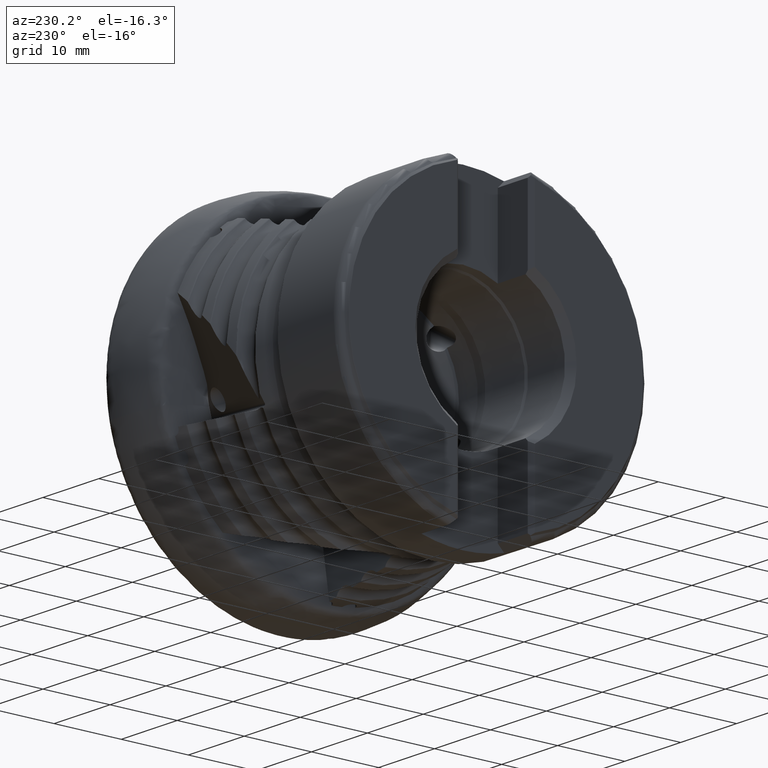
[diagram: clean part render]
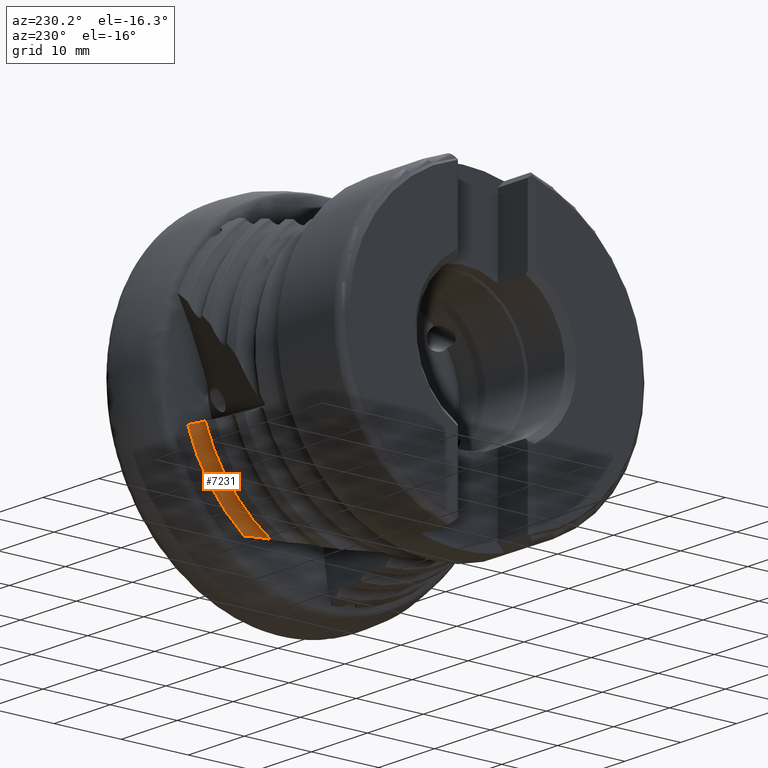
[diagram: same view with one face highlighted and labeled with its STEP entity id]
A machine part, auxiliary view. The second image highlights one B-rep face of the part: STEP entity #7231.
In plain terms, the highlighted toroidal blend (fillet) surface has major radius 23.955 mm and minor (blend) radius 1.5 mm.
Its self-contained STEP definition (entity closure, byte-faithful):
#120 = CARTESIAN_POINT ( 'NONE',  ( -12.39733285107306100, 11.71879220787598200, -19.19430444232506300 ) ) ;
#266 = CARTESIAN_POINT ( 'NONE',  ( -12.55580385029482900, 21.42346964659504100, -6.998692743784970600 ) ) ;
#885 = CARTESIAN_POINT ( 'NONE',  ( -10.83496305367967900, 13.31198459178215500, -18.82122147978789400 ) ) ;
#907 = CARTESIAN_POINT ( 'NONE',  ( -12.83288638579834800, 11.75946830251291400, -19.37665331344237200 ) ) ;
#1054 = CARTESIAN_POINT ( 'NONE',  ( -12.19852963367064700, 21.35488572603442500, -6.950139747027097100 ) ) ;
#1070 = EDGE_CURVE ( 'NONE', #2704, #5597, #2824, .T. ) ;
#1638 = EDGE_CURVE ( 'NONE', #8301, #2704, #7625, .T. ) ;
#1677 = CARTESIAN_POINT ( 'NONE',  ( -10.64922864038300800, 13.90660544288887800, -18.84234868751763200 ) ) ;
#1705 = CARTESIAN_POINT ( 'NONE',  ( -13.07315635611657400, 11.92584612400722800, -19.50050367586986900 ) ) ;
#1854 = CARTESIAN_POINT ( 'NONE',  ( -11.83321212871193700, 21.37069172257798800, -6.928415310497913800 ) ) ;
#2298 = ORIENTED_EDGE ( 'NONE', *, *, #1070, .T. ) ;
#2477 = CARTESIAN_POINT ( 'NONE',  ( -11.13041719893031000, 12.76257767887297100, -18.85167985422474100 ) ) ;
#2648 = CARTESIAN_POINT ( 'NONE',  ( -11.47859461521570700, 21.47065304658107700, -6.934821318568586100 ) ) ;
#2704 = VERTEX_POINT ( 'NONE', #5037 ) ;
#2789 = DIRECTION ( 'NONE',  ( 0.0000000000000000000, 0.0000000000000000000, -1.000000000000000000 ) ) ;
#2824 = B_SPLINE_CURVE_WITH_KNOTS ( 'NONE', 3,
 ( #1677, #6355, #885, #7141, #2477, #7916, #3259, #8721, #4037, #9528, #4832, #120, #5611, #907, #6393, #1705 ),
 .UNSPECIFIED., .F., .F.,
 ( 4, 2, 2, 2, 2, 2, 2, 4 ),
 ( 8.253477086968365500E-007, 0.0009308591653724857000, 0.001395876074204377600, 0.001860892983036269400, 0.002325909891868161100, 0.002790926800700053600, 0.003255943709531945200, 0.003720960618363837300 ),
 .UNSPECIFIED. ) ;
#3104 = ORIENTED_EDGE ( 'NONE', *, *, #7568, .T. ) ;
#3259 = CARTESIAN_POINT ( 'NONE',  ( -11.40311828469842600, 12.38530799839650800, -18.90077119948897500 ) ) ;
#3392 = CARTESIAN_POINT ( 'NONE',  ( -13.07315635611658400, 21.71700909958214600, -7.132108044244627200 ) ) ;
#3424 = CARTESIAN_POINT ( 'NONE',  ( -11.15837931970024000, 21.64857431446633700, -6.969087484803682600 ) ) ;
#3428 = AXIS2_PLACEMENT_3D ( 'NONE', #7436, #7408, #2789 ) ;
#3805 = CARTESIAN_POINT ( 'NONE',  ( -13.07315635611657400, 11.92584612400722800, -19.50050367586986900 ) ) ;
#3964 = CIRCLE ( 'NONE', #8117, 22.85815936128961200 ) ;
#3987 = CARTESIAN_POINT ( 'NONE',  ( -13.07315635611660200, 0.0000000000000000000, 0.0000000000000000000 ) ) ;
#4037 = CARTESIAN_POINT ( 'NONE',  ( -11.72989152014818400, 12.05547185456704500, -18.97934912721723700 ) ) ;
#4223 = CARTESIAN_POINT ( 'NONE',  ( -10.73758827631938600, 22.08095651042593100, -7.078638146277021400 ) ) ;
#4405 = DIRECTION ( 'NONE',  ( -1.000000000000000000, 0.0000000000000000000, 0.0000000000000000000 ) ) ;
#4766 = DIRECTION ( 'NONE',  ( 0.0000000000000000000, 0.0000000000000000000, -1.000000000000000000 ) ) ;
#4832 = CARTESIAN_POINT ( 'NONE',  ( -12.11420666375667400, 11.80673023346263400, -19.09425315640027100 ) ) ;
#4977 = CARTESIAN_POINT ( 'NONE',  ( -12.67112704960195800, 21.46526317138879500, -7.020751467664488200 ) ) ;
#5037 = CARTESIAN_POINT ( 'NONE',  ( -10.64922864038300800, 13.90660544288887800, -18.84234868751763200 ) ) ;
#5400 = FACE_OUTER_BOUND ( 'NONE', #6435, .T. ) ;
#5571 = CARTESIAN_POINT ( 'NONE',  ( -10.64922864038293900, 22.30225117972865700, -7.144044465320945400 ) ) ;
#5597 = VERTEX_POINT ( 'NONE', #3805 ) ;
#5611 = CARTESIAN_POINT ( 'NONE',  ( -12.54696003583467100, 11.70431974509783400, -19.25235081107150500 ) ) ;
#5747 = CARTESIAN_POINT ( 'NONE',  ( -12.32100576554029900, 21.36869864686698200, -6.963632943803692600 ) ) ;
#6047 = B_SPLINE_CURVE_WITH_KNOTS ( 'NONE', 3,
 ( #3392, #6501, #9671, #4977, #266, #5747, #1054, #6542, #1854, #7307, #2648, #8108, #3424, #8908, #4223, #9716 ),
 .UNSPECIFIED., .F., .F.,
 ( 4, 2, 2, 2, 2, 2, 2, 4 ),
 ( 2.699627758606063600E-007, 0.0003656528789479819400, 0.0007310357951201032200, 0.001096418711292224600, 0.001461801627464345900, 0.001827184543636467100, 0.002192567459808588600, 0.002923333292152831200 ),
 .UNSPECIFIED. ) ;
#6355 = CARTESIAN_POINT ( 'NONE',  ( -10.72438406242118900, 13.60180446419940000, -18.82342676156950000 ) ) ;
#6393 = CARTESIAN_POINT ( 'NONE',  ( -12.96352739467743300, 11.82803265218505100, -19.44045524242923800 ) ) ;
#6435 = EDGE_LOOP ( 'NONE', ( #3104, #6508, #7862, #2298 ) ) ;
#6501 = CARTESIAN_POINT ( 'NONE',  ( -12.98291965980741500, 21.63892565796960500, -7.100102506814161900 ) ) ;
#6508 = ORIENTED_EDGE ( 'NONE', *, *, #8967, .T. ) ;
#6542 = CARTESIAN_POINT ( 'NONE',  ( -11.95406464636174200, 21.35609332383691200, -6.932557733062126600 ) ) ;
#6807 = VERTEX_POINT ( 'NONE', #9767 ) ;
#7141 = CARTESIAN_POINT ( 'NONE',  ( -11.04973883065641600, 12.89793833725420800, -18.84099326883178400 ) ) ;
#7231 = ADVANCED_FACE ( 'NONE', ( #5400 ), #9836, .F. ) ;
#7307 = CARTESIAN_POINT ( 'NONE',  ( -11.59428950561793800, 21.42810549287426300, -6.929503293578640900 ) ) ;
#7408 = DIRECTION ( 'NONE',  ( 1.000000000000000000, -0.0000000000000000000, -0.0000000000000000000 ) ) ;
#7436 = CARTESIAN_POINT ( 'NONE',  ( -12.04999999999999500, 0.0000000000000000000, 0.0000000000000000000 ) ) ;
#7568 = EDGE_CURVE ( 'NONE', #5597, #6807, #3964, .T. ) ;
#7625 = CIRCLE ( 'NONE', #9781, 23.41853494576893300 ) ;
#7862 = ORIENTED_EDGE ( 'NONE', *, *, #1638, .T. ) ;
#7916 = CARTESIAN_POINT ( 'NONE',  ( -11.30712148861792900, 12.50647469200756100, -18.88160898287720000 ) ) ;
#8108 = CARTESIAN_POINT ( 'NONE',  ( -11.26171794935382100, 21.58018357468355600, -6.954464000615122800 ) ) ;
#8117 = AXIS2_PLACEMENT_3D ( 'NONE', #3987, #9478, #4766 ) ;
#8301 = VERTEX_POINT ( 'NONE', #5571 ) ;
#8721 = CARTESIAN_POINT ( 'NONE',  ( -11.61409356914633800, 12.16006959008519800, -18.94951841611288400 ) ) ;
#8908 = CARTESIAN_POINT ( 'NONE',  ( -10.88246325996961000, 21.88239203572202000, -7.024772628773210000 ) ) ;
#8967 = EDGE_CURVE ( 'NONE', #6807, #8301, #6047, .T. ) ;
#9089 = CARTESIAN_POINT ( 'NONE',  ( -10.64922864038347200, 0.0000000000000000000, 0.0000000000000000000 ) ) ;
#9478 = DIRECTION ( 'NONE',  ( 1.000000000000000000, -0.0000000000000000000, -0.0000000000000000000 ) ) ;
#9528 = CARTESIAN_POINT ( 'NONE',  ( -11.97840399286718200, 11.87978288649744700, -19.05125182767167000 ) ) ;
#9671 = CARTESIAN_POINT ( 'NONE',  ( -12.88434764302864500, 21.57313501224010800, -7.071478283106044300 ) ) ;
#9716 = CARTESIAN_POINT ( 'NONE',  ( -10.64922864038293900, 22.30225117972865700, -7.144044465320945400 ) ) ;
#9767 = CARTESIAN_POINT ( 'NONE',  ( -13.07315635611658400, 21.71700909958214600, -7.132108044244627200 ) ) ;
#9781 = AXIS2_PLACEMENT_3D ( 'NONE', #9089, #4405, #9899 ) ;
#9836 = TOROIDAL_SURFACE ( 'NONE', #3428, 23.95504179388586200, 1.500000000000000900 ) ;
#9899 = DIRECTION ( 'NONE',  ( 0.0000000000000000000, 0.0000000000000000000, 1.000000000000000000 ) ) ;